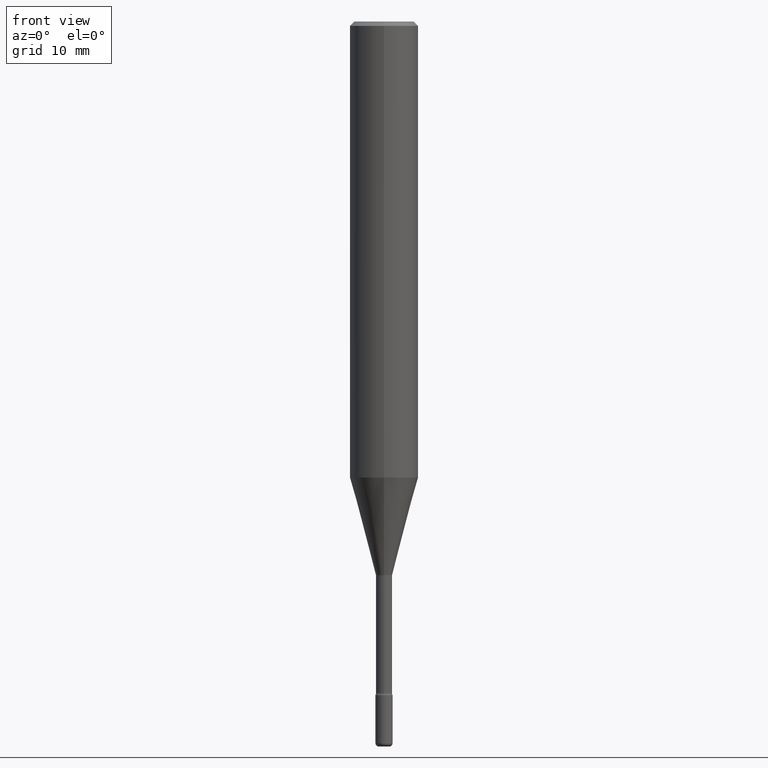
[diagram: clean part render]
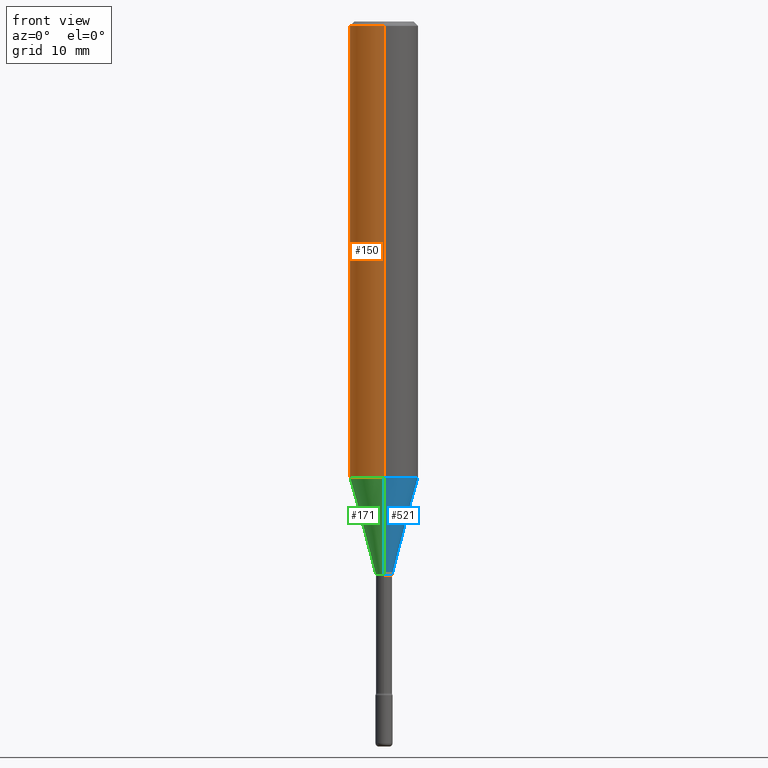
[diagram: same view with three faces highlighted in distinct colors, each labeled with its STEP entity id]
A machine part, front view with three faces highlighted in distinct colors.
Their STEP definitions:

[orange] entity #150 — the highlighted cylindrical surface (edge-blend (fillet) strip) has radius 2.9997 mm, axis along (-0, 0, 1).
#110 = DIRECTION ( 'NONE',  ( -2.445735198447141486E-29, 3.491099849961848612E-15, 1.000000000000000000 ) ) ;
#129 = DIRECTION ( 'NONE',  ( -2.445735198447141206E-29, 3.491099849961848612E-15, 1.000000000000000000 ) ) ;
#150 = ADVANCED_FACE ( 'NONE', ( #195 ), #421, .T. ) ;
#187 = VERTEX_POINT ( 'NONE', #373 ) ;
#195 = FACE_OUTER_BOUND ( 'NONE', #461, .T. ) ;
#199 = CARTESIAN_POINT ( 'NONE',  ( -1.169113584055446105E-44, 1.669184350826100908E-30, 4.780733988912460139E-16 ) ) ;
#201 = CARTESIAN_POINT ( 'NONE',  ( 3.668602797670719043E-31, -5.236649774942783100E-17, -0.01500000000000002720 ) ) ;
#206 = DIRECTION ( 'NONE',  ( -6.982962677686265922E-15, -1.000000000000000000, 4.626330217890369336E-15 ) ) ;
#253 = LINE ( 'NONE', #435, #301 ) ;
#254 = ORIENTED_EDGE ( 'NONE', *, *, #497, .F. ) ;
#257 = CARTESIAN_POINT ( 'NONE',  ( 8.391509709327170485E-16, 0.1180999999999999689, -0.01500000000000044006 ) ) ;
#270 = EDGE_CURVE ( 'NONE', #545, #187, #482, .T. ) ;
#296 = CARTESIAN_POINT ( 'NONE',  ( -8.246878922347479668E-16, -0.1180999999999999966, 8.903722911717403556E-16 ) ) ;
#301 = VECTOR ( 'NONE', #129, 39.37007874015748143 ) ;
#305 = CARTESIAN_POINT ( 'NONE',  ( -8.246878922347096084E-16, -0.1181000000000055200, -1.572395812076530897 ) ) ;
#322 = AXIS2_PLACEMENT_3D ( 'NONE', #201, #389, #559 ) ;
#349 = CARTESIAN_POINT ( 'NONE',  ( 3.845663783486448442E-29, -5.489390783621017201E-15, -1.572395812076531119 ) ) ;
#357 = AXIS2_PLACEMENT_3D ( 'NONE', #349, #438, #206 ) ;
#358 = CARTESIAN_POINT ( 'NONE',  ( 8.391509709327165554E-16, 0.1180999999999945010, -1.572395812076531563 ) ) ;
#362 = EDGE_CURVE ( 'NONE', #538, #187, #473, .T. ) ;
#373 = CARTESIAN_POINT ( 'NONE',  ( -8.246878922347475723E-16, -0.1181000000000000522, -0.01499999999999961607 ) ) ;
#389 = DIRECTION ( 'NONE',  ( -2.445735198447141486E-29, 3.491099849961848612E-15, 1.000000000000000000 ) ) ;
#393 = DIRECTION ( 'NONE',  ( -2.445735198447141206E-29, 3.491099849961848612E-15, 1.000000000000000000 ) ) ;
#409 = CIRCLE ( 'NONE', #357, 0.1180999999999999966 ) ;
#410 = AXIS2_PLACEMENT_3D ( 'NONE', #199, #110, #557 ) ;
#421 = CYLINDRICAL_SURFACE ( 'NONE', #410, 0.1180999999999999966 ) ;
#435 = CARTESIAN_POINT ( 'NONE',  ( 8.391509709326781971E-16, 0.1180999999999999966, 6.577450661075172151E-17 ) ) ;
#438 = DIRECTION ( 'NONE',  ( -2.445735198447141486E-29, 3.491099849961848612E-15, 1.000000000000000000 ) ) ;
#444 = VECTOR ( 'NONE', #393, 39.37007874015748143 ) ;
#447 = ORIENTED_EDGE ( 'NONE', *, *, #558, .T. ) ;
#451 = VERTEX_POINT ( 'NONE', #358 ) ;
#461 = EDGE_LOOP ( 'NONE', ( #254, #447, #479, #501 ) ) ;
#473 = LINE ( 'NONE', #296, #444 ) ;
#479 = ORIENTED_EDGE ( 'NONE', *, *, #362, .T. ) ;
#482 = CIRCLE ( 'NONE', #322, 0.1180999999999999966 ) ;
#497 = EDGE_CURVE ( 'NONE', #451, #545, #253, .T. ) ;
#501 = ORIENTED_EDGE ( 'NONE', *, *, #270, .F. ) ;
#538 = VERTEX_POINT ( 'NONE', #305 ) ;
#545 = VERTEX_POINT ( 'NONE', #257 ) ;
#557 = DIRECTION ( 'NONE',  ( -6.982962677686265922E-15, -1.000000000000000000, 3.491099849961848612E-15 ) ) ;
#558 = EDGE_CURVE ( 'NONE', #451, #538, #409, .T. ) ;
#559 = DIRECTION ( 'NONE',  ( -6.982962677686265922E-15, -1.000000000000000000, 3.487819265831411744E-15 ) ) ;

[blue] entity #521 — the highlighted conical surface has half-angle 15 deg.
#1 = CARTESIAN_POINT ( 'NONE',  ( 5.201567624825857444E-16, 0.02831111260565732576, -1.907492501787273254 ) ) ;
#7 = ORIENTED_EDGE ( 'NONE', *, *, #210, .F. ) ;
#22 = DIRECTION ( 'NONE',  ( -6.982962677686265922E-15, -1.000000000000000000, 0.000000000000000000 ) ) ;
#24 = CONICAL_SURFACE ( 'NONE', #555, 0.02831111260566398710, 0.2617993877991499074 ) ;
#31 = CARTESIAN_POINT ( 'NONE',  ( 4.665221552395131109E-29, -6.659246786792900261E-15, -1.907492501787273254 ) ) ;
#53 = CIRCLE ( 'NONE', #481, 0.1180999999999999966 ) ;
#57 = ORIENTED_EDGE ( 'NONE', *, *, #462, .F. ) ;
#65 = CARTESIAN_POINT ( 'NONE',  ( -1.976954426890781458E-16, -0.02831111260567064497, -1.907492501787273254 ) ) ;
#77 = CARTESIAN_POINT ( 'NONE',  ( -1.976954426890781458E-16, -0.02831111260567064497, -1.907492501787273254 ) ) ;
#104 = EDGE_CURVE ( 'NONE', #375, #463, #544, .T. ) ;
#121 = LINE ( 'NONE', #341, #283 ) ;
#158 = FACE_OUTER_BOUND ( 'NONE', #367, .T. ) ;
#210 = EDGE_CURVE ( 'NONE', #375, #538, #548, .T. ) ;
#212 = ORIENTED_EDGE ( 'NONE', *, *, #104, .T. ) ;
#217 = CARTESIAN_POINT ( 'NONE',  ( 3.845663783486448442E-29, -5.489390783621017201E-15, -1.572395812076531119 ) ) ;
#283 = VECTOR ( 'NONE', #298, 39.37007874015748854 ) ;
#293 = DIRECTION ( 'NONE',  ( -2.445735198447141486E-29, 3.491099849961848612E-15, 1.000000000000000000 ) ) ;
#298 = DIRECTION ( 'NONE',  ( 1.839019923739597554E-15, 0.2588190451025245697, 0.9659258262890670910 ) ) ;
#305 = CARTESIAN_POINT ( 'NONE',  ( -8.246878922347096084E-16, -0.1181000000000055200, -1.572395812076530897 ) ) ;
#319 = EDGE_CURVE ( 'NONE', #463, #451, #121, .T. ) ;
#341 = CARTESIAN_POINT ( 'NONE',  ( 2.011625540324540952E-16, 0.02831111260565732576, -1.907492501787273254 ) ) ;
#345 = DIRECTION ( 'NONE',  ( -2.445735198447141486E-29, 3.491099849961848612E-15, 1.000000000000000000 ) ) ;
#358 = CARTESIAN_POINT ( 'NONE',  ( 8.391509709327165554E-16, 0.1180999999999945010, -1.572395812076531563 ) ) ;
#367 = EDGE_LOOP ( 'NONE', ( #212, #484, #57, #7 ) ) ;
#375 = VERTEX_POINT ( 'NONE', #77 ) ;
#400 = DIRECTION ( 'NONE',  ( -6.982962677686265922E-15, -1.000000000000000000, 4.626330217890369336E-15 ) ) ;
#417 = DIRECTION ( 'NONE',  ( -1.807323732225327773E-15, -0.2588190451025178529, 0.9659258262890690894 ) ) ;
#423 = CARTESIAN_POINT ( 'NONE',  ( 4.665221552395131109E-29, -6.659246786792900261E-15, -1.907492501787273254 ) ) ;
#451 = VERTEX_POINT ( 'NONE', #358 ) ;
#462 = EDGE_CURVE ( 'NONE', #538, #451, #53, .T. ) ;
#463 = VERTEX_POINT ( 'NONE', #1 ) ;
#481 = AXIS2_PLACEMENT_3D ( 'NONE', #217, #345, #400 ) ;
#484 = ORIENTED_EDGE ( 'NONE', *, *, #319, .T. ) ;
#494 = VECTOR ( 'NONE', #417, 39.37007874015748143 ) ;
#516 = AXIS2_PLACEMENT_3D ( 'NONE', #423, #551, #22 ) ;
#521 = ADVANCED_FACE ( 'NONE', ( #158 ), #24, .T. ) ;
#538 = VERTEX_POINT ( 'NONE', #305 ) ;
#544 = CIRCLE ( 'NONE', #516, 0.02831111260566398710 ) ;
#548 = LINE ( 'NONE', #65, #494 ) ;
#551 = DIRECTION ( 'NONE',  ( -2.445735198447141486E-29, 3.491099849961848612E-15, 1.000000000000000000 ) ) ;
#555 = AXIS2_PLACEMENT_3D ( 'NONE', #31, #293, #567 ) ;
#567 = DIRECTION ( 'NONE',  ( -6.982962677686265922E-15, -1.000000000000000000, 0.000000000000000000 ) ) ;

[green] entity #171 — the highlighted conical surface has half-angle 15 deg.
#1 = CARTESIAN_POINT ( 'NONE',  ( 5.201567624825857444E-16, 0.02831111260565732576, -1.907492501787273254 ) ) ;
#29 = DIRECTION ( 'NONE',  ( -2.445735198447141486E-29, 3.491099849961848612E-15, 1.000000000000000000 ) ) ;
#42 = CONICAL_SURFACE ( 'NONE', #520, 0.02831111260566398710, 0.2617993877991499074 ) ;
#55 = ORIENTED_EDGE ( 'NONE', *, *, #319, .F. ) ;
#60 = ORIENTED_EDGE ( 'NONE', *, *, #266, .T. ) ;
#61 = FACE_OUTER_BOUND ( 'NONE', #533, .T. ) ;
#65 = CARTESIAN_POINT ( 'NONE',  ( -1.976954426890781458E-16, -0.02831111260567064497, -1.907492501787273254 ) ) ;
#77 = CARTESIAN_POINT ( 'NONE',  ( -1.976954426890781458E-16, -0.02831111260567064497, -1.907492501787273254 ) ) ;
#121 = LINE ( 'NONE', #341, #283 ) ;
#156 = CARTESIAN_POINT ( 'NONE',  ( 4.665221552395131109E-29, -6.659246786792900261E-15, -1.907492501787273254 ) ) ;
#171 = ADVANCED_FACE ( 'NONE', ( #61 ), #42, .T. ) ;
#206 = DIRECTION ( 'NONE',  ( -6.982962677686265922E-15, -1.000000000000000000, 4.626330217890369336E-15 ) ) ;
#207 = DIRECTION ( 'NONE',  ( -6.982962677686265922E-15, -1.000000000000000000, 0.000000000000000000 ) ) ;
#210 = EDGE_CURVE ( 'NONE', #375, #538, #548, .T. ) ;
#240 = CIRCLE ( 'NONE', #374, 0.02831111260566398710 ) ;
#266 = EDGE_CURVE ( 'NONE', #463, #375, #240, .T. ) ;
#283 = VECTOR ( 'NONE', #298, 39.37007874015748854 ) ;
#298 = DIRECTION ( 'NONE',  ( 1.839019923739597554E-15, 0.2588190451025245697, 0.9659258262890670910 ) ) ;
#305 = CARTESIAN_POINT ( 'NONE',  ( -8.246878922347096084E-16, -0.1181000000000055200, -1.572395812076530897 ) ) ;
#319 = EDGE_CURVE ( 'NONE', #463, #451, #121, .T. ) ;
#335 = DIRECTION ( 'NONE',  ( -2.445735198447141486E-29, 3.491099849961848612E-15, 1.000000000000000000 ) ) ;
#341 = CARTESIAN_POINT ( 'NONE',  ( 2.011625540324540952E-16, 0.02831111260565732576, -1.907492501787273254 ) ) ;
#349 = CARTESIAN_POINT ( 'NONE',  ( 3.845663783486448442E-29, -5.489390783621017201E-15, -1.572395812076531119 ) ) ;
#357 = AXIS2_PLACEMENT_3D ( 'NONE', #349, #438, #206 ) ;
#358 = CARTESIAN_POINT ( 'NONE',  ( 8.391509709327165554E-16, 0.1180999999999945010, -1.572395812076531563 ) ) ;
#374 = AXIS2_PLACEMENT_3D ( 'NONE', #383, #29, #207 ) ;
#375 = VERTEX_POINT ( 'NONE', #77 ) ;
#383 = CARTESIAN_POINT ( 'NONE',  ( 4.665221552395131109E-29, -6.659246786792900261E-15, -1.907492501787273254 ) ) ;
#409 = CIRCLE ( 'NONE', #357, 0.1180999999999999966 ) ;
#417 = DIRECTION ( 'NONE',  ( -1.807323732225327773E-15, -0.2588190451025178529, 0.9659258262890690894 ) ) ;
#438 = DIRECTION ( 'NONE',  ( -2.445735198447141486E-29, 3.491099849961848612E-15, 1.000000000000000000 ) ) ;
#451 = VERTEX_POINT ( 'NONE', #358 ) ;
#463 = VERTEX_POINT ( 'NONE', #1 ) ;
#494 = VECTOR ( 'NONE', #417, 39.37007874015748143 ) ;
#496 = ORIENTED_EDGE ( 'NONE', *, *, #210, .T. ) ;
#514 = DIRECTION ( 'NONE',  ( -6.982962677686265922E-15, -1.000000000000000000, 0.000000000000000000 ) ) ;
#520 = AXIS2_PLACEMENT_3D ( 'NONE', #156, #335, #514 ) ;
#533 = EDGE_LOOP ( 'NONE', ( #55, #60, #496, #540 ) ) ;
#538 = VERTEX_POINT ( 'NONE', #305 ) ;
#540 = ORIENTED_EDGE ( 'NONE', *, *, #558, .F. ) ;
#548 = LINE ( 'NONE', #65, #494 ) ;
#558 = EDGE_CURVE ( 'NONE', #451, #538, #409, .T. ) ;